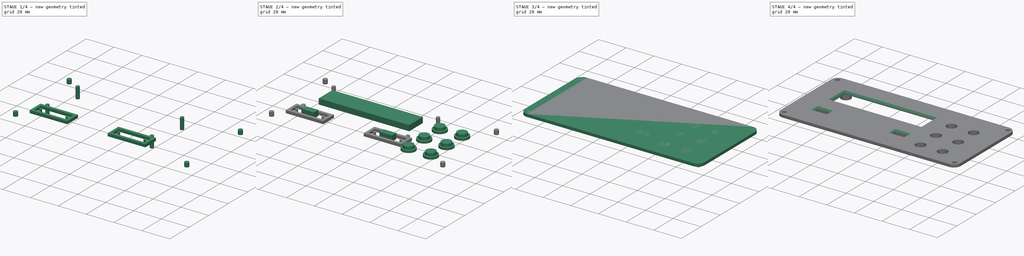
[diagram: build sequence overview — one tinted view per stage of 4, left to right]
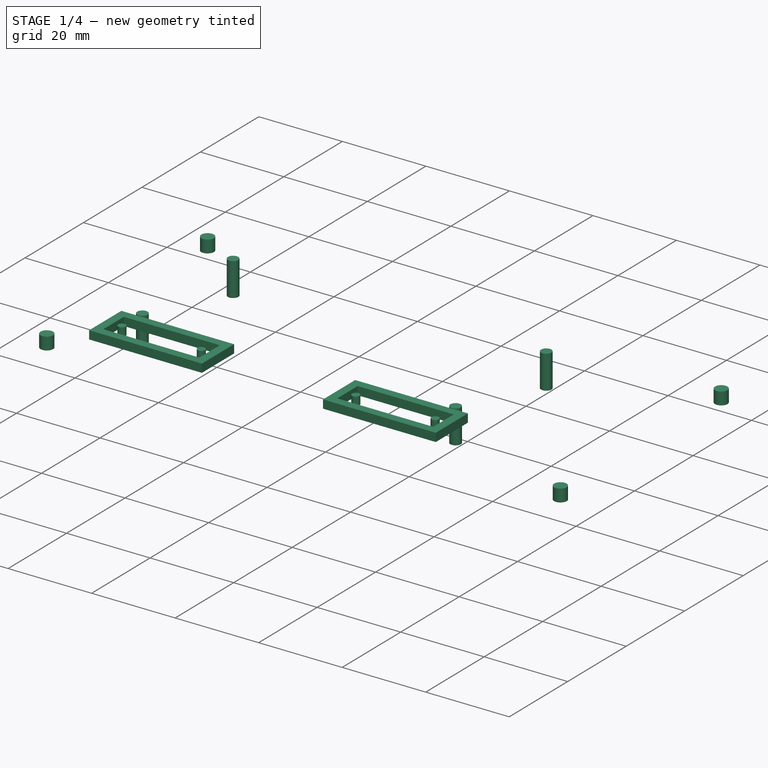
[diagram: stage 1 of 4 — iso view after this stage's code; geometry added in this stage tinted green]
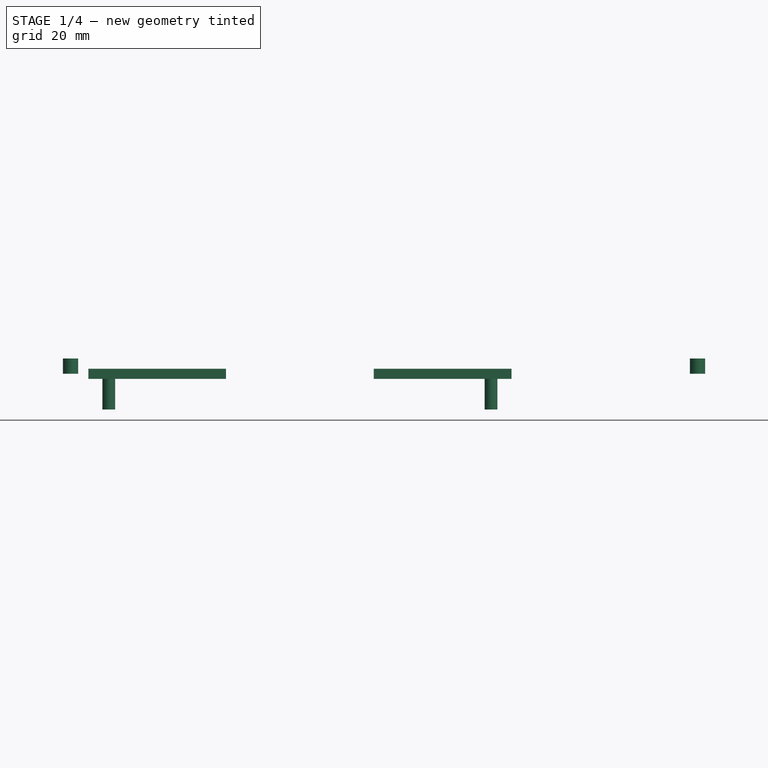
[diagram: stage 1 of 4 — front view after this stage's code; geometry added in this stage tinted green]
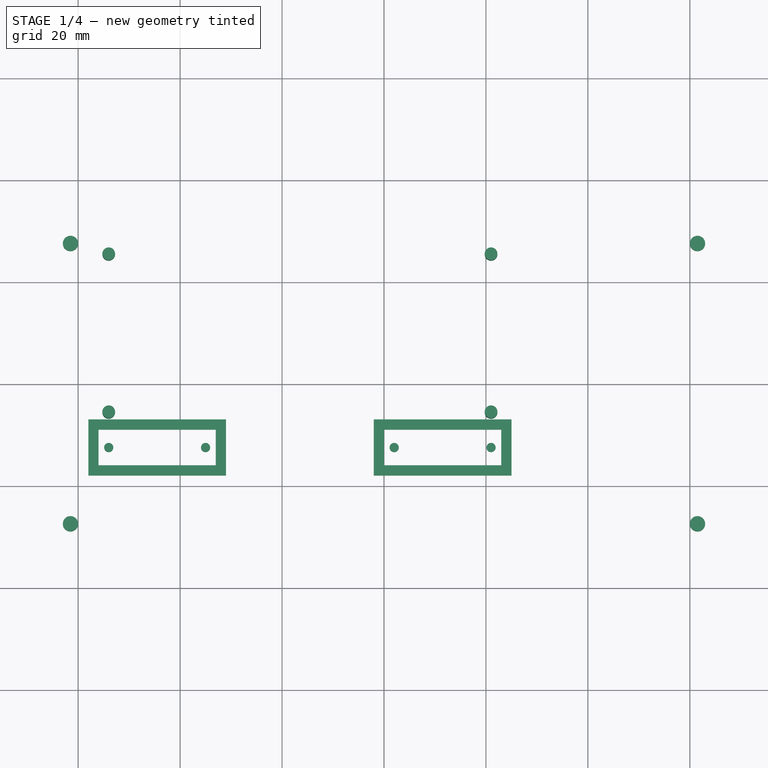
[diagram: stage 1 of 4 — top view after this stage's code; geometry added in this stage tinted green]
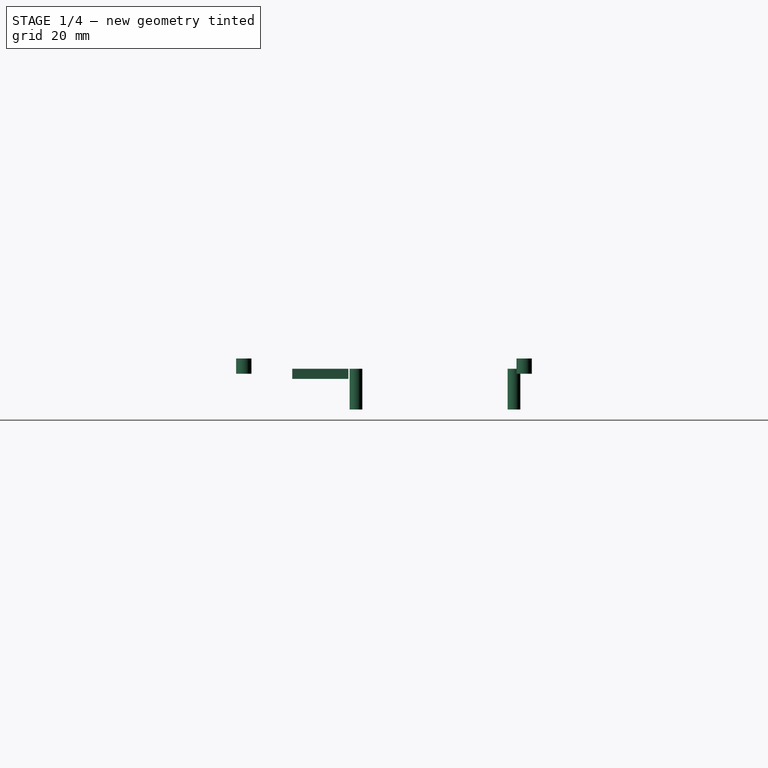
[diagram: stage 1 of 4 — right view after this stage's code; geometry added in this stage tinted green]
FCSTD DOCUMENT  (FreeCAD 0.20R29410 (Git))
Label: minidexed case panel
License: All rights reserved
LicenseURL: http://en.wikipedia.org/wiki/All_rights_reserved
objects: Sketcher::SketchObject×7, Part::Extrusion×7, Part::MultiFuse×2, PartDesign::Body×1, Part::Cut×1, Part::Chamfer×1
note: 19 computed .brp shape members not serialized (recipe doc carries the construction recipe); baked Part::Feature solids carry a one-line shape summary decoded from their .brp

FEATURE [Part::Extrusion] Extrude004
  Base = -> Sketch005
  Dir = (0,0,1)
  DirMode = 2
  FaceMakerClass = Part::FaceMakerBullseye
  LengthFwd = 0
  LengthRev = 8
  Solid = true
  Symmetric = false
FEATURE [Sketcher::SketchObject] Sketch006  label="Sketch Case Mounting Thru Holes"
  FullyConstrained = true
  MapMode = 5
  Support = -> [XY_Plane]
  sketch-geometry (12):
    g0: ArcOfCircle CenterX=-60 CenterY=26 CenterZ=0 NormalX=0 NormalY=0 NormalZ=1 AngleXU=0 Radius=5 StartAngle=1.5708 EndAngle=3.14159
    g1: LineSegment StartX=-60 StartY=31 StartZ=0 EndX=60 EndY=31 EndZ=0
    g2: ArcOfCircle CenterX=60 CenterY=26 CenterZ=0 NormalX=0 NormalY=0 NormalZ=1 AngleXU=0 Radius=5 StartAngle=2.775e-13 EndAngle=1.5708
    g3: LineSegment StartX=65 StartY=26 StartZ=0 EndX=65 EndY=-26 EndZ=0
    g4: ArcOfCircle CenterX=60 CenterY=-26 CenterZ=0 NormalX=0 NormalY=0 NormalZ=1 AngleXU=0 Radius=5 StartAngle=4.71239 EndAngle=6.28319
    g5: LineSegment StartX=60 StartY=-31 StartZ=0 EndX=-60 EndY=-31 EndZ=0
    g6: ArcOfCircle CenterX=-60 CenterY=-26 CenterZ=0 NormalX=0 NormalY=0 NormalZ=1 AngleXU=0 Radius=5 StartAngle=3.14159 EndAngle=4.71239
    g7: LineSegment StartX=-65 StartY=-26 StartZ=0 EndX=-65 EndY=26 EndZ=0
    g8: Circle CenterX=-61.5 CenterY=27.5 CenterZ=0 NormalX=0 NormalY=0 NormalZ=1 AngleXU=0 Radius=1.5
    g9: Circle CenterX=61.5 CenterY=27.5 CenterZ=0 NormalX=0 NormalY=0 NormalZ=1 AngleXU=0 Radius=1.5
    g10: Circle CenterX=-61.5 CenterY=-27.5 CenterZ=0 NormalX=0 NormalY=0 NormalZ=1 AngleXU=0 Radius=1.5
    g11: Circle CenterX=61.5 CenterY=-27.5 CenterZ=0 NormalX=0 NormalY=0 NormalZ=1 AngleXU=0 Radius=1.5
  constraints (30):
    c: Tangent(g0,g1) = 1.5708
    c: Tangent(g1,g2) = 1.5708
    c: Tangent(g2,g3) = 1.5708
    c: Tangent(g3,g4) = 1.5708
    c: Tangent(g4,g5) = 1.5708
    c: Tangent(g5,g6) = 1.5708
    c: Tangent(g6,g7) = 1.5708
    c: Tangent(g7,g0) = 1.5708
    c: Horizontal(g5)
    c: Vertical(g3)
    c: Equal(g0,g2)
    c: Equal(g2,g4)
    c: Equal(g4,g6)
    c: Symmetric(g0,g1,g-2)
    c: Symmetric(g0,g6,g-1)
    c: DistanceX(g0,g2) = 130
    c: DistanceY(g4,g1) = 62
    c: Radius(g6) = 5
    c: Diameter(g8) = 3
    c: Equal(g8,g9)
    c: Equal(g8,g10)
    c: Equal(g8,g11)
    c: Horizontal(g8,g9)
    c: Horizontal(g10,g11)
    c: Vertical(g8,g10)
    c: Vertical(g9,g11)
    c: DistanceY(g8,g0) = 3.5
    c: DistanceX(g0,g8) = 3.5
    c: DistanceX(g9,g2) = 3.5
    c: DistanceY(g5,g10) = 3.5
FEATURE [Part::Extrusion] Extrude005
  Base = -> Sketch006
  Dir = (0,0,1)
  DirMode = 2
  FaceMakerClass = Part::FaceMakerBullseye
  LengthFwd = 2
  LengthRev = 1
  Solid = true
  Symmetric = false
FEATURE [Sketcher::SketchObject] Sketch007  label="Sketch Switch Retainer"
  FullyConstrained = true
  MapMode = 5
  Support = -> [XY_Plane]
  sketch-geometry (32):
    g0: ArcOfCircle CenterX=-60 CenterY=26 CenterZ=0 NormalX=0 NormalY=0 NormalZ=1 AngleXU=0 Radius=5 StartAngle=1.5708 EndAngle=3.14159
    g1: LineSegment StartX=-60 StartY=31 StartZ=0 EndX=60 EndY=31 EndZ=0
    g2: ArcOfCircle CenterX=60 CenterY=26 CenterZ=0 NormalX=0 NormalY=0 NormalZ=1 AngleXU=0 Radius=5 StartAngle=0 EndAngle=1.5708
    g3: LineSegment StartX=65 StartY=26 StartZ=0 EndX=65 EndY=-26 EndZ=0
    g4: ArcOfCircle CenterX=60 CenterY=-26 CenterZ=0 NormalX=0 NormalY=0 NormalZ=1 AngleXU=0 Radius=5 StartAngle=4.71239 EndAngle=6.28319
    g5: LineSegment StartX=60 StartY=-31 StartZ=0 EndX=-60 EndY=-31 EndZ=0
    g6: ArcOfCircle CenterX=-60 CenterY=-26 CenterZ=0 NormalX=0 NormalY=0 NormalZ=1 AngleXU=0 Radius=5 StartAngle=3.14159 EndAngle=4.71239
    g7: LineSegment StartX=-65 StartY=-26 StartZ=0 EndX=-65 EndY=26 EndZ=0
    g8: LineSegment StartX=-49 StartY=17 StartZ=0 EndX=16 EndY=17 EndZ=0
    g9: LineSegment StartX=16 StartY=17 StartZ=0 EndX=16 EndY=3 EndZ=0
    g10: LineSegment StartX=16 StartY=3 StartZ=0 EndX=-49 EndY=3 EndZ=0
    g11: LineSegment StartX=-49 StartY=3 StartZ=0 EndX=-49 EndY=17 EndZ=0
    g12: LineSegment StartX=-56 StartY=-9 StartZ=0 EndX=-33 EndY=-9 EndZ=0
    g13: LineSegment StartX=-33 StartY=-9 StartZ=0 EndX=-33 EndY=-16 EndZ=0
    g14: LineSegment StartX=-33 StartY=-16 StartZ=0 EndX=-56 EndY=-16 EndZ=0
    g15: LineSegment StartX=-56 StartY=-16 StartZ=0 EndX=-56 EndY=-9 EndZ=0
    g16: LineSegment StartX=-58 StartY=-7 StartZ=0 EndX=-31 EndY=-7 EndZ=0
    g17: LineSegment StartX=-31 StartY=-7 StartZ=0 EndX=-31 EndY=-18 EndZ=0
    g18: LineSegment StartX=-31 StartY=-18 StartZ=0 EndX=-58 EndY=-18 EndZ=0
    g19: LineSegment StartX=-58 StartY=-18 StartZ=0 EndX=-58 EndY=-7 EndZ=0
    g20: LineSegment StartX=-2.13e-14 StartY=-9 StartZ=0 EndX=23 EndY=-9 EndZ=0
    g21: LineSegment StartX=23 StartY=-9 StartZ=0 EndX=23 EndY=-16 EndZ=0
    g22: LineSegment StartX=23 StartY=-16 StartZ=0 EndX=-2.13e-14 EndY=-16 EndZ=0
    g23: LineSegment StartX=-2.13e-14 StartY=-16 StartZ=0 EndX=-2.13e-14 EndY=-9 EndZ=0
    g24: LineSegment StartX=-2 StartY=-7 StartZ=0 EndX=25 EndY=-7 EndZ=0
    g25: LineSegment StartX=25 StartY=-7 StartZ=0 EndX=25 EndY=-18 EndZ=0
    g26: LineSegment StartX=25 StartY=-18 StartZ=0 EndX=-2 EndY=-18 EndZ=0
    g27: LineSegment StartX=-2 StartY=-18 StartZ=0 EndX=-2 EndY=-7 EndZ=0
    g28: Circle CenterX=-54 CenterY=-12.5 CenterZ=0 NormalX=0 NormalY=0 NormalZ=1 AngleXU=0 Radius=0.9
    g29: Circle CenterX=-35 CenterY=-12.5 CenterZ=0 NormalX=0 NormalY=0 NormalZ=1 AngleXU=0 Radius=0.9
    g30: Circle CenterX=2 CenterY=-12.5 CenterZ=0 NormalX=0 NormalY=0 NormalZ=1 AngleXU=0 Radius=0.9
    g31: Circle CenterX=21 CenterY=-12.5 CenterZ=0 NormalX=0 NormalY=0 NormalZ=1 AngleXU=0 Radius=0.9
  constraints (90):
    c: Tangent(g0,g1) = 1.5708
    c: Tangent(g1,g2) = 1.5708
    c: Tangent(g2,g3) = 1.5708
    c: Tangent(g3,g4) = 1.5708
    c: Tangent(g4,g5) = 1.5708
    c: Tangent(g5,g6) = 1.5708
    c: Tangent(g6,g7) = 1.5708
    c: Tangent(g7,g0) = 1.5708
    c: Horizontal(g5)
    c: Vertical(g3)
    c: Equal(g0,g2)
    c: Equal(g2,g4)
    c: Equal(g4,g6)
    c: Symmetric(g0,g1,g-2)
    c: Symmetric(g0,g6,g-1)
    c: DistanceX(g0,g2) = 130
    c: DistanceY(g4,g1) = 62
    c: Coincident(g8,g9)
    c: Coincident(g9,g10)
    c: Coincident(g10,g11)
    c: Coincident(g11,g8)
    c: Horizontal(g8)
    c: Horizontal(g10)
    c: Vertical(g9)
    c: Vertical(g11)
    c: DistanceX(g8,g8) = 65
    c: DistanceY(g9,g8) = 14
    c: DistanceX(g0,g8) = 16
    c: DistanceY(g8,g0) = 14
    c: Radius(g6) = 5
    c: Coincident(g12,g13)
    c: Coincident(g13,g14)
    c: Coincident(g14,g15)
    c: Coincident(g15,g12)
    c: Horizontal(g12)
    c: Horizontal(g14)
    c: Vertical(g13)
    c: Vertical(g15)
    c: Coincident(g16,g17)
    c: Coincident(g17,g18)
    c: Coincident(g18,g19)
    c: Coincident(g19,g16)
    c: Horizontal(g16)
    c: Horizontal(g18)
    c: Vertical(g17)
    c: Vertical(g19)
    c: DistanceX(g12,g12) = 23
    c: DistanceY(g14,g12) = 7
    c: DistanceX(g16,g16) = 27
    c: DistanceY(g18,g16) = 11
    c: DistanceX(g16,g12) = 2
    c: DistanceY(g12,g16) = 2
    c: DistanceY(g16,g10) = 10
    c: DistanceX(g12,g10) = 7
    c: Coincident(g20,g21)
    c: Coincident(g21,g22)
    c: Coincident(g22,g23)
    c: Coincident(g23,g20)
    c: Horizontal(g20)
    c: Horizontal(g22)
    c: Vertical(g21)
    c: Vertical(g23)
    c: Coincident(g24,g25)
    c: Coincident(g25,g26)
    c: Coincident(g26,g27)
    c: Coincident(g27,g24)
    c: Horizontal(g24)
    c: Horizontal(g26)
    c: Vertical(g25)
    c: Vertical(g27)
    c: DistanceX(g20,g20) = 23
    c: DistanceY(g22,g20) = 7
    c: DistanceX(g24,g24) = 27
    c: DistanceY(g26,g24) = 11
    c: DistanceX(g24,g20) = 2
    c: DistanceY(g20,g24) = 2
    c: DistanceY(g24,g9) = 10
    c: DistanceX(g9,g20) = 7
    c: Diameter(g28) = 1.8
    c: Equal(g28,g29)
    c: Equal(g28,g30)
    c: Equal(g28,g31)
    c: DistanceY(g28,g12) = 3.5
    c: Horizontal(g28,g29)
    c: Horizontal(g28,g30)
    c: Horizontal(g28,g31)
    c: DistanceX(g12,g28) = 2
    c: DistanceX(g29,g12) = 2
    c: DistanceX(g20,g30) = 2
    c: DistanceX(g31,g20) = 2
FEATURE [Part::Extrusion] Extrude006
  Base = -> Sketch007
  Dir = (0,0,1)
  DirMode = 2
  FaceMakerClass = Part::FaceMakerBullseye
  LengthFwd = 0
  LengthRev = 2
  Solid = true
  Symmetric = false
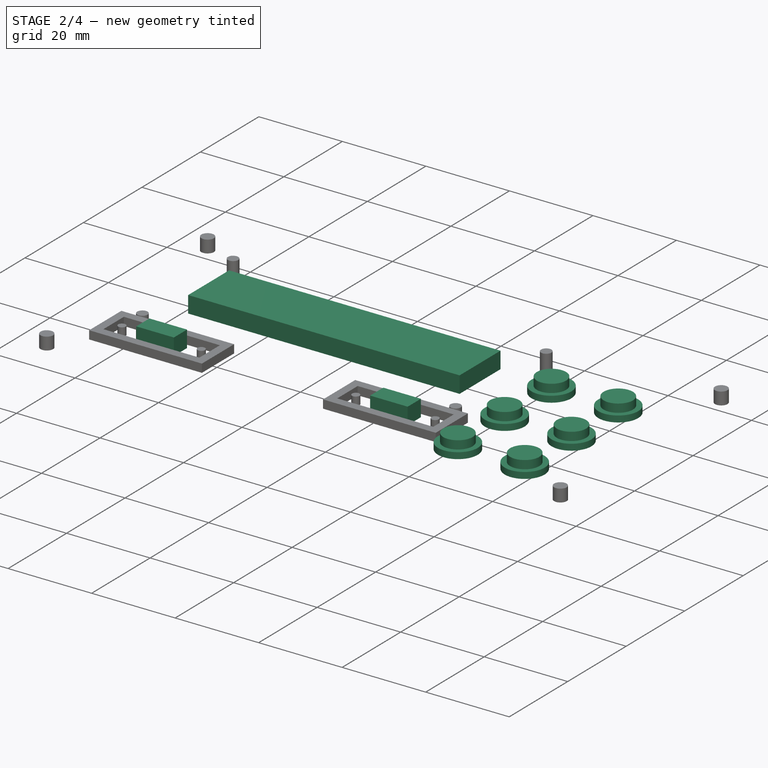
[diagram: stage 2 of 4 — iso view after this stage's code; geometry added in this stage tinted green]
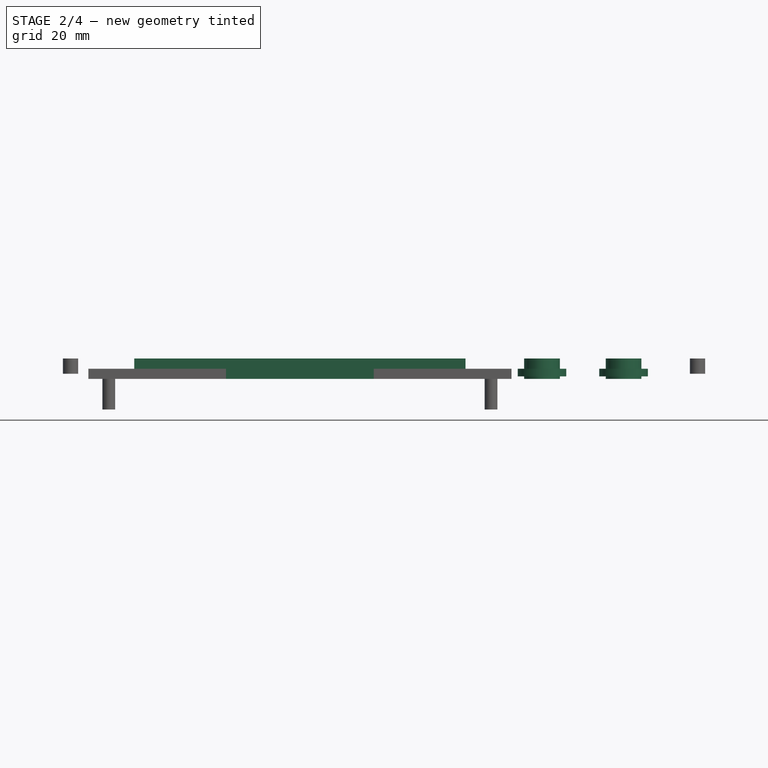
[diagram: stage 2 of 4 — front view after this stage's code; geometry added in this stage tinted green]
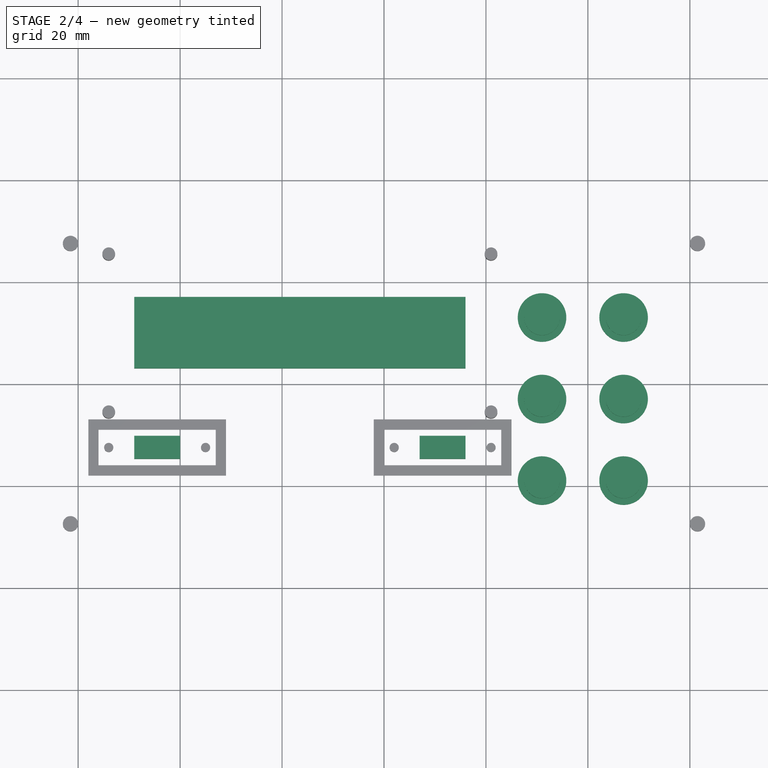
[diagram: stage 2 of 4 — top view after this stage's code; geometry added in this stage tinted green]
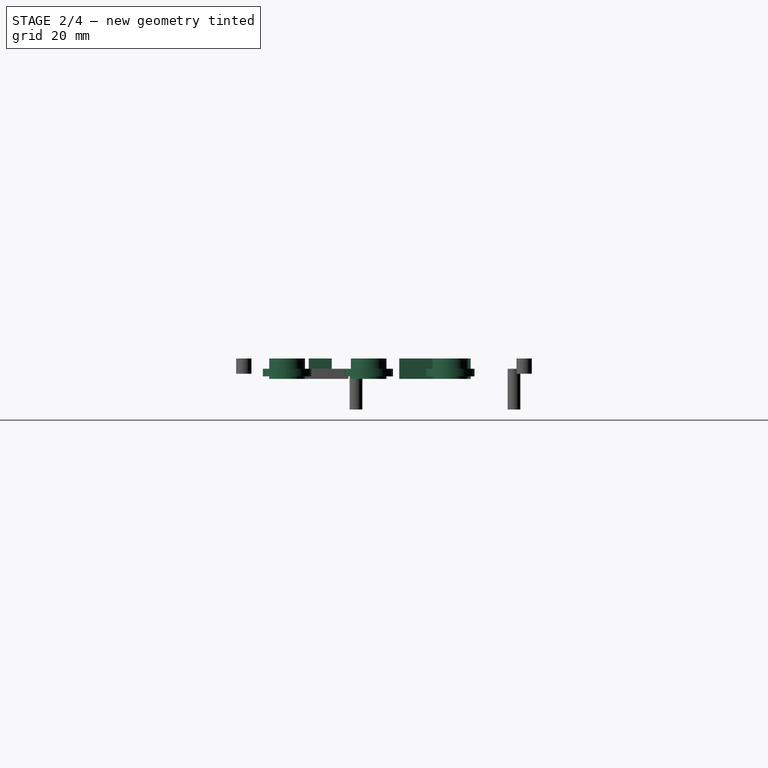
[diagram: stage 2 of 4 — right view after this stage's code; geometry added in this stage tinted green]
FEATURE [Part::Extrusion] Extrude002
  Base = -> Sketch004
  Dir = (0,0,1)
  DirMode = 2
  FaceMakerClass = Part::FaceMakerBullseye
  LengthFwd = 0
  LengthRev = 1.5
  Solid = true
  Symmetric = false
FEATURE [Part::Extrusion] Extrude003
  Base = -> Sketch001
  Dir = (0,0,1)
  DirMode = 2
  FaceMakerClass = Part::FaceMakerBullseye
  LengthFwd = 2
  LengthRev = 2
  Solid = true
  Symmetric = false
FEATURE [Part::MultiFuse] Fusion001
  Shapes = -> [Extrude003,Extrude004,Extrude005]
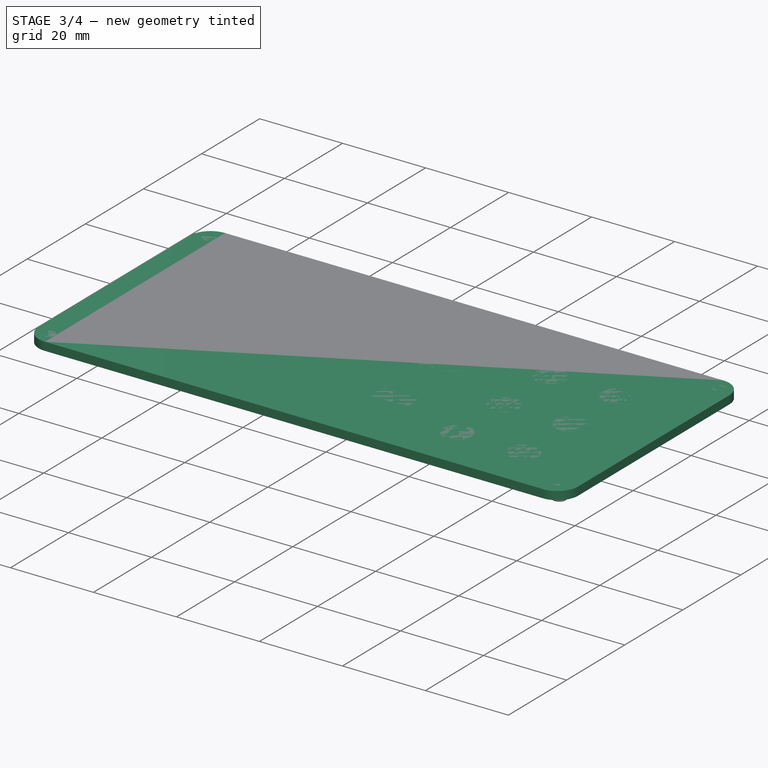
[diagram: stage 3 of 4 — iso view after this stage's code; geometry added in this stage tinted green]
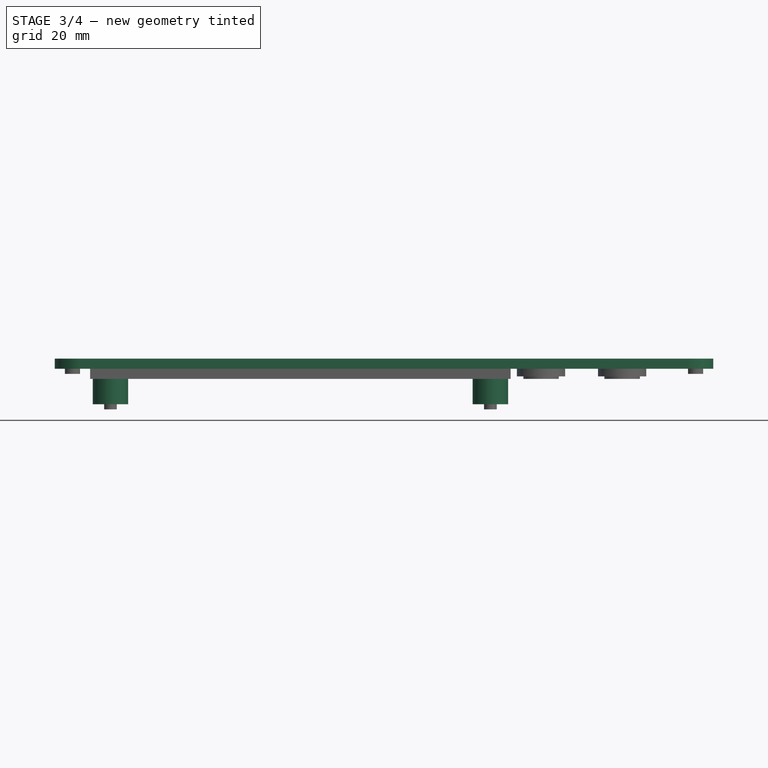
[diagram: stage 3 of 4 — front view after this stage's code; geometry added in this stage tinted green]
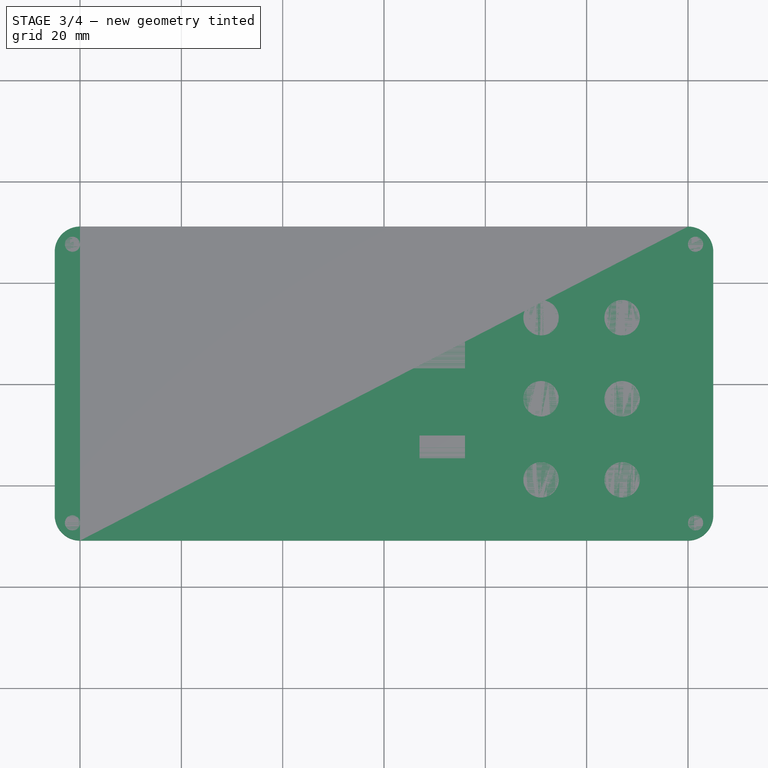
[diagram: stage 3 of 4 — top view after this stage's code; geometry added in this stage tinted green]
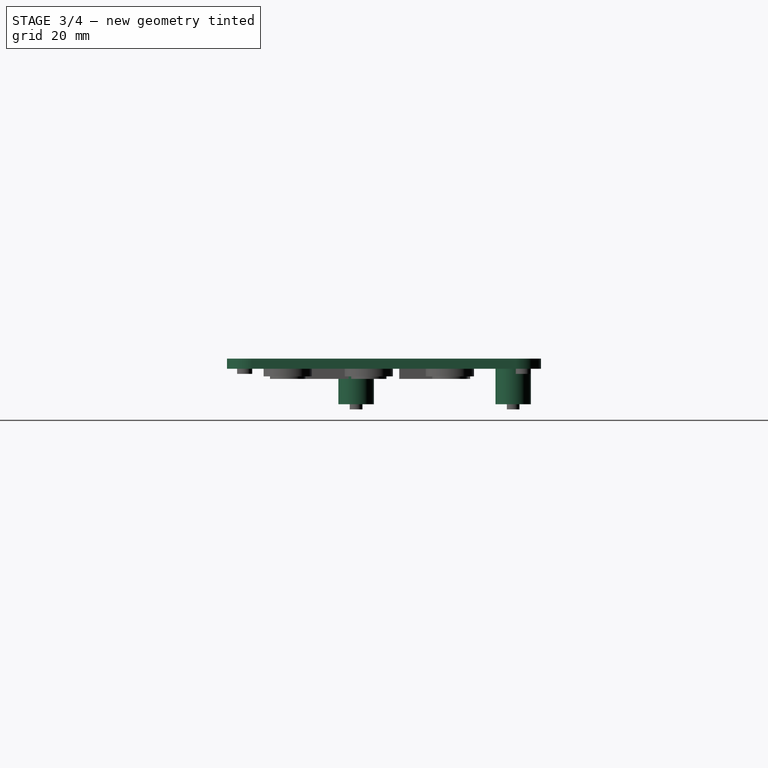
[diagram: stage 3 of 4 — right view after this stage's code; geometry added in this stage tinted green]
FEATURE [PartDesign::Body] Body
  Origin = -> Origin
FEATURE [Sketcher::SketchObject] Sketch  label="Sketch Outer"
  FullyConstrained = true
  MapMode = 5
  Support = -> [XY_Plane]
  sketch-geometry (8):
    g0: ArcOfCircle CenterX=-60 CenterY=26 CenterZ=0 NormalX=0 NormalY=0 NormalZ=1 AngleXU=0 Radius=5 StartAngle=1.5708 EndAngle=3.14159
    g1: LineSegment StartX=-60 StartY=31 StartZ=0 EndX=60 EndY=31 EndZ=0
    g2: ArcOfCircle CenterX=60 CenterY=26 CenterZ=0 NormalX=0 NormalY=0 NormalZ=1 AngleXU=0 Radius=5 StartAngle=2e-16 EndAngle=1.5708
    g3: LineSegment StartX=65 StartY=26 StartZ=0 EndX=65 EndY=-26 EndZ=0
    g4: ArcOfCircle CenterX=60 CenterY=-26 CenterZ=0 NormalX=0 NormalY=0 NormalZ=1 AngleXU=0 Radius=5 StartAngle=4.71239 EndAngle=6.28319
    g5: LineSegment StartX=60 StartY=-31 StartZ=0 EndX=-60 EndY=-31 EndZ=0
    g6: ArcOfCircle CenterX=-60 CenterY=-26 CenterZ=0 NormalX=0 NormalY=0 NormalZ=1 AngleXU=0 Radius=5 StartAngle=3.14159 EndAngle=4.71239
    g7: LineSegment StartX=-65 StartY=-26 StartZ=0 EndX=-65 EndY=26 EndZ=0
  constraints (18):
    c: Tangent(g0,g1) = 1.5708
    c: Tangent(g1,g2) = 1.5708
    c: Tangent(g2,g3) = 1.5708
    c: Tangent(g3,g4) = 1.5708
    c: Tangent(g4,g5) = 1.5708
    c: Tangent(g5,g6) = 1.5708
    c: Tangent(g6,g7) = 1.5708
    c: Tangent(g7,g0) = 1.5708
    c: Horizontal(g5)
    c: Vertical(g3)
    c: Equal(g0,g2)
    c: Equal(g2,g4)
    c: Equal(g4,g6)
    c: Symmetric(g0,g1,g-2)
    c: Symmetric(g0,g6,g-1)
    c: DistanceX(g0,g2) = 130
    c: DistanceY(g4,g1) = 62
    c: Radius(g6) = 5
FEATURE [Sketcher::SketchObject] Sketch001  label="Sketch Thru Holes"
  FullyConstrained = true
  MapMode = 5
  Support = -> [XY_Plane]
  sketch-geometry (26):
    g0: ArcOfCircle CenterX=-60 CenterY=26 CenterZ=0 NormalX=0 NormalY=0 NormalZ=1 AngleXU=0 Radius=5 StartAngle=1.5708 EndAngle=3.14159
    g1: LineSegment StartX=-60 StartY=31 StartZ=0 EndX=60 EndY=31 EndZ=0
    g2: ArcOfCircle CenterX=60 CenterY=26 CenterZ=0 NormalX=0 NormalY=0 NormalZ=1 AngleXU=0 Radius=5 StartAngle=1.0828e-12 EndAngle=1.5708
    g3: LineSegment StartX=65 StartY=26 StartZ=0 EndX=65 EndY=-26 EndZ=0
    g4: ArcOfCircle CenterX=60 CenterY=-26 CenterZ=0 NormalX=0 NormalY=0 NormalZ=1 AngleXU=0 Radius=5 StartAngle=4.71239 EndAngle=6.28319
    g5: LineSegment StartX=60 StartY=-31 StartZ=0 EndX=-60 EndY=-31 EndZ=0
    g6: ArcOfCircle CenterX=-60 CenterY=-26 CenterZ=0 NormalX=0 NormalY=0 NormalZ=1 AngleXU=0 Radius=5 StartAngle=3.14159 EndAngle=4.71239
    g7: LineSegment StartX=-65 StartY=-26 StartZ=0 EndX=-65 EndY=26 EndZ=0
    g8: LineSegment StartX=-49 StartY=17 StartZ=0 EndX=16 EndY=17 EndZ=0
    g9: LineSegment StartX=16 StartY=17 StartZ=0 EndX=16 EndY=3 EndZ=0
    g10: LineSegment StartX=16 StartY=3 StartZ=0 EndX=-49 EndY=3 EndZ=0
    g11: LineSegment StartX=-49 StartY=3 StartZ=0 EndX=-49 EndY=17 EndZ=0
    g12: Circle CenterX=31 CenterY=13 CenterZ=0 NormalX=0 NormalY=0 NormalZ=1 AngleXU=0 Radius=3.5
    g13: Circle CenterX=47 CenterY=13 CenterZ=0 NormalX=0 NormalY=0 NormalZ=1 AngleXU=0 Radius=3.5
    g14: Circle CenterX=31 CenterY=-3 CenterZ=0 NormalX=0 NormalY=0 NormalZ=1 AngleXU=0 Radius=3.5
    g15: Circle CenterX=47 CenterY=-3 CenterZ=0 NormalX=0 NormalY=0 NormalZ=1 AngleXU=0 Radius=3.5
    g16: Circle CenterX=31 CenterY=-19 CenterZ=0 NormalX=0 NormalY=0 NormalZ=1 AngleXU=0 Radius=3.5
    g17: Circle CenterX=47 CenterY=-19 CenterZ=0 NormalX=0 NormalY=0 NormalZ=1 AngleXU=0 Radius=3.5
    g18: LineSegment StartX=-49 StartY=-10.25 StartZ=0 EndX=-40 EndY=-10.25 EndZ=0
    g19: LineSegment StartX=-40 StartY=-10.25 StartZ=0 EndX=-40 EndY=-14.75 EndZ=0
    g20: LineSegment StartX=-40 StartY=-14.75 StartZ=0 EndX=-49 EndY=-14.75 EndZ=0
    g21: LineSegment StartX=-49 StartY=-14.75 StartZ=0 EndX=-49 EndY=-10.25 EndZ=0
    g22: LineSegment StartX=7 StartY=-10.25 StartZ=0 EndX=16 EndY=-10.25 EndZ=0
    g23: LineSegment StartX=16 StartY=-10.25 StartZ=0 EndX=16 EndY=-14.75 EndZ=0
    g24: LineSegment StartX=16 StartY=-14.75 StartZ=0 EndX=7 EndY=-14.75 EndZ=0
    g25: LineSegment StartX=7 StartY=-14.75 StartZ=0 EndX=7 EndY=-10.25 EndZ=0
  constraints (68):
    c: Tangent(g0,g1) = 1.5708
    c: Tangent(g1,g2) = 1.5708
    c: Tangent(g2,g3) = 1.5708
    c: Tangent(g3,g4) = 1.5708
    c: Tangent(g4,g5) = 1.5708
    c: Tangent(g5,g6) = 1.5708
    c: Tangent(g6,g7) = 1.5708
    c: Tangent(g7,g0) = 1.5708
    c: Horizontal(g5)
    c: Vertical(g3)
    c: Equal(g0,g2)
    c: Equal(g2,g4)
    c: Equal(g4,g6)
    c: Symmetric(g0,g1,g-2)
    c: Symmetric(g0,g6,g-1)
    c: DistanceX(g0,g2) = 130
    c: DistanceY(g4,g1) = 62
    c: Coincident(g8,g9)
    c: Coincident(g9,g10)
    c: Coincident(g10,g11)
    c: Coincident(g11,g8)
    c: Horizontal(g8)
    c: Horizontal(g10)
    c: Vertical(g9)
    c: Vertical(g11)
    c: DistanceX(g8,g8) = 65
    c: DistanceY(g9,g8) = 14
    c: DistanceX(g0,g8) = 16
    c: DistanceY(g8,g0) = 14
    c: Radius(g6) = 5
    c: Diameter(g12) = 7
    c: Equal(g12, g13-g17) x5
    c: DistanceX(g13,g2) = 18
    c: DistanceX(g12,g13) = 16
    c: Horizontal(g12,g13)
    c: Horizontal(g14,g15)
    c: Horizontal(g16,g17)
    c: Vertical(g12,g14)
    c: Vertical(g14,g16)
    c: Vertical(g13,g15)
    c: Vertical(g15,g17)
    c: DistanceY(g14,g12) = 16
    c: DistanceY(g16,g14) = 16
    c: DistanceY(g4,g16) = 12
    c: Coincident(g18,g19)
    c: Coincident(g19,g20)
    c: Coincident(g20,g21)
    c: Coincident(g21,g18)
    c: Horizontal(g18)
    c: Horizontal(g20)
    c: Vertical(g19)
    c: Vertical(g21)
    c: DistanceX(g18,g18) = 9
    c: DistanceY(g20,g18) = 4.5
    c: DistanceY(g18,g10) = 13.25
    c: Vertical(g10,g18)
    c: Coincident(g22,g23)
    c: Coincident(g23,g24)
    c: Coincident(g24,g25)
    c: Coincident(g25,g22)
    c: Horizontal(g22)
    c: Horizontal(g24)
    c: Vertical(g23)
    c: Vertical(g25)
    c: DistanceX(g22,g22) = 9
    c: DistanceY(g24,g22) = 4.5
    c: DistanceY(g22,g9) = 13.25
    c: Vertical(g9,g22)
FEATURE [Sketcher::SketchObject] Sketch003  label="Sketch Display Spacers"
  FullyConstrained = true
  MapMode = 5
  Support = -> [XY_Plane]
  sketch-geometry (16):
    g0: ArcOfCircle CenterX=-60 CenterY=26 CenterZ=0 NormalX=0 NormalY=0 NormalZ=1 AngleXU=0 Radius=5 StartAngle=1.5708 EndAngle=3.14159
    g1: LineSegment StartX=-60 StartY=31 StartZ=0 EndX=60 EndY=31 EndZ=0
    g2: ArcOfCircle CenterX=60 CenterY=26 CenterZ=0 NormalX=0 NormalY=0 NormalZ=1 AngleXU=0 Radius=5 StartAngle=6.1037e-12 EndAngle=1.5708
    g3: LineSegment StartX=65 StartY=26 StartZ=0 EndX=65 EndY=-26 EndZ=0
    g4: ArcOfCircle CenterX=60 CenterY=-26 CenterZ=0 NormalX=0 NormalY=0 NormalZ=1 AngleXU=0 Radius=5 StartAngle=4.71239 EndAngle=6.28319
    g5: LineSegment StartX=60 StartY=-31 StartZ=0 EndX=-60 EndY=-31 EndZ=0
    g6: ArcOfCircle CenterX=-60 CenterY=-26 CenterZ=0 NormalX=0 NormalY=0 NormalZ=1 AngleXU=0 Radius=5 StartAngle=3.14159 EndAngle=4.71239
    g7: LineSegment StartX=-65 StartY=-26 StartZ=0 EndX=-65 EndY=26 EndZ=0
    g8: LineSegment StartX=-49 StartY=17 StartZ=0 EndX=16 EndY=17 EndZ=0
    g9: LineSegment StartX=16 StartY=17 StartZ=0 EndX=16 EndY=3 EndZ=0
    g10: LineSegment StartX=16 StartY=3 StartZ=0 EndX=-49 EndY=3 EndZ=0
    g11: LineSegment StartX=-49 StartY=3 StartZ=0 EndX=-49 EndY=17 EndZ=0
    g12: Circle CenterX=-54 CenterY=25.5 CenterZ=0 NormalX=0 NormalY=0 NormalZ=1 AngleXU=0 Radius=3.5
    g13: Circle CenterX=21 CenterY=25.5 CenterZ=0 NormalX=0 NormalY=0 NormalZ=1 AngleXU=0 Radius=3.5
    g14: Circle CenterX=-54 CenterY=-5.5 CenterZ=0 NormalX=0 NormalY=0 NormalZ=1 AngleXU=0 Radius=3.5
    g15: Circle CenterX=21 CenterY=-5.5 CenterZ=0 NormalX=0 NormalY=0 NormalZ=1 AngleXU=0 Radius=3.5
  constraints (42):
    c: Tangent(g0,g1) = 1.5708
    c: Tangent(g1,g2) = 1.5708
    c: Tangent(g2,g3) = 1.5708
    c: Tangent(g3,g4) = 1.5708
    c: Tangent(g4,g5) = 1.5708
    c: Tangent(g5,g6) = 1.5708
    c: Tangent(g6,g7) = 1.5708
    c: Tangent(g7,g0) = 1.5708
    c: Horizontal(g5)
    c: Vertical(g3)
    c: Equal(g0,g2)
    c: Equal(g2,g4)
    c: Equal(g4,g6)
    c: Symmetric(g0,g1,g-2)
    c: Symmetric(g0,g6,g-1)
    c: DistanceX(g0,g2) = 130
    c: DistanceY(g4,g1) = 62
    c: Coincident(g8,g9)
    c: Coincident(g9,g10)
    c: Coincident(g10,g11)
    c: Coincident(g11,g8)
    c: Horizontal(g8)
    c: Horizontal(g10)
    c: Vertical(g9)
    c: Vertical(g11)
    c: DistanceX(g8,g8) = 65
    c: DistanceY(g9,g8) = 14
    c: DistanceX(g0,g8) = 16
    c: DistanceY(g8,g0) = 14
    c: Radius(g6) = 5
    c: Diameter(g12) = 7
    c: Equal(g12,g13)
    c: Equal(g12,g14)
    c: Equal(g12,g15)
    c: Horizontal(g12,g13)
    c: Horizontal(g14,g15)
    c: Vertical(g12,g14)
    c: Vertical(g13,g15)
    c: DistanceX(g14,g10) = 5
    c: DistanceX(g9,g15) = 5
    c: DistanceY(g8,g12) = 8.5
    c: DistanceY(g14,g10) = 8.5
FEATURE [Sketcher::SketchObject] Sketch004  label="Sketch Button Spacers"
  FullyConstrained = true
  MapMode = 5
  Support = -> [XY_Plane]
  sketch-geometry (14):
    g0: ArcOfCircle CenterX=-60 CenterY=26 CenterZ=0 NormalX=0 NormalY=0 NormalZ=1 AngleXU=0 Radius=5 StartAngle=1.5708 EndAngle=3.14159
    g1: LineSegment StartX=-60 StartY=31 StartZ=0 EndX=60 EndY=31 EndZ=0
    g2: ArcOfCircle CenterX=60 CenterY=26 CenterZ=0 NormalX=0 NormalY=0 NormalZ=1 AngleXU=0 Radius=5 StartAngle=3.033e-13 EndAngle=1.5708
    g3: LineSegment StartX=65 StartY=26 StartZ=0 EndX=65 EndY=-26 EndZ=0
    g4: ArcOfCircle CenterX=60 CenterY=-26 CenterZ=0 NormalX=0 NormalY=0 NormalZ=1 AngleXU=0 Radius=5 StartAngle=4.71239 EndAngle=6.28319
    g5: LineSegment StartX=60 StartY=-31 StartZ=0 EndX=-60 EndY=-31 EndZ=0
    g6: ArcOfCircle CenterX=-60 CenterY=-26 CenterZ=0 NormalX=0 NormalY=0 NormalZ=1 AngleXU=0 Radius=5 StartAngle=3.14159 EndAngle=4.71239
    g7: LineSegment StartX=-65 StartY=-26 StartZ=0 EndX=-65 EndY=26 EndZ=0
    g8: Circle CenterX=31 CenterY=13 CenterZ=0 NormalX=0 NormalY=0 NormalZ=1 AngleXU=0 Radius=4.7625
    g9: Circle CenterX=47 CenterY=13 CenterZ=0 NormalX=0 NormalY=0 NormalZ=1 AngleXU=0 Radius=4.7625
    g10: Circle CenterX=31 CenterY=-3 CenterZ=0 NormalX=0 NormalY=0 NormalZ=1 AngleXU=0 Radius=4.7625
    g11: Circle CenterX=47 CenterY=-3 CenterZ=0 NormalX=0 NormalY=0 NormalZ=1 AngleXU=0 Radius=4.7625
    g12: Circle CenterX=31 CenterY=-19 CenterZ=0 NormalX=0 NormalY=0 NormalZ=1 AngleXU=0 Radius=4.7625
    g13: Circle CenterX=47 CenterY=-19 CenterZ=0 NormalX=0 NormalY=0 NormalZ=1 AngleXU=0 Radius=4.7625
  constraints (32):
    c: Tangent(g0,g1) = 1.5708
    c: Tangent(g1,g2) = 1.5708
    c: Tangent(g2,g3) = 1.5708
    c: Tangent(g3,g4) = 1.5708
    c: Tangent(g4,g5) = 1.5708
    c: Tangent(g5,g6) = 1.5708
    c: Tangent(g6,g7) = 1.5708
    c: Tangent(g7,g0) = 1.5708
    c: Horizontal(g5)
    c: Vertical(g3)
    c: Equal(g0,g2)
    c: Equal(g2,g4)
    c: Equal(g4,g6)
    c: Symmetric(g0,g1,g-2)
    c: Symmetric(g0,g6,g-1)
    c: DistanceX(g0,g2) = 130
    c: DistanceY(g4,g1) = 62
    c: Radius(g6) = 5
    c: Diameter(g8) = 9.525
    c: Equal(g8, g9-g13) x5
    c: DistanceX(g9,g2) = 18
    c: DistanceX(g8,g9) = 16
    c: Horizontal(g8,g9)
    c: Horizontal(g10,g11)
    c: Horizontal(g12,g13)
    c: Vertical(g8,g10)
    c: Vertical(g10,g12)
    c: Vertical(g9,g11)
    c: Vertical(g11,g13)
    c: DistanceY(g10,g8) = 16
    c: DistanceY(g12,g10) = 16
    c: DistanceY(g4,g12) = 12
FEATURE [Sketcher::SketchObject] Sketch005  label="Sketch Blind Holes"
  FullyConstrained = true
  MapMode = 5
  Support = -> [XY_Plane]
  sketch-geometry (16):
    g0: ArcOfCircle CenterX=-60 CenterY=26 CenterZ=0 NormalX=0 NormalY=0 NormalZ=1 AngleXU=0 Radius=5 StartAngle=1.5708 EndAngle=3.14159
    g1: LineSegment StartX=-60 StartY=31 StartZ=0 EndX=60 EndY=31 EndZ=0
    g2: ArcOfCircle CenterX=60 CenterY=26 CenterZ=0 NormalX=0 NormalY=0 NormalZ=1 AngleXU=0 Radius=5 StartAngle=6.1039e-12 EndAngle=1.5708
    g3: LineSegment StartX=65 StartY=26 StartZ=0 EndX=65 EndY=-26 EndZ=0
    g4: ArcOfCircle CenterX=60 CenterY=-26 CenterZ=0 NormalX=0 NormalY=0 NormalZ=1 AngleXU=0 Radius=5 StartAngle=4.71239 EndAngle=6.28319
    g5: LineSegment StartX=60 StartY=-31 StartZ=0 EndX=-60 EndY=-31 EndZ=0
    g6: ArcOfCircle CenterX=-60 CenterY=-26 CenterZ=0 NormalX=0 NormalY=0 NormalZ=1 AngleXU=0 Radius=5 StartAngle=3.14159 EndAngle=4.71239
    g7: LineSegment StartX=-65 StartY=-26 StartZ=0 EndX=-65 EndY=26 EndZ=0
    g8: LineSegment StartX=-49 StartY=17 StartZ=0 EndX=16 EndY=17 EndZ=0
    g9: LineSegment StartX=16 StartY=17 StartZ=0 EndX=16 EndY=3 EndZ=0
    g10: LineSegment StartX=16 StartY=3 StartZ=0 EndX=-49 EndY=3 EndZ=0
    g11: LineSegment StartX=-49 StartY=3 StartZ=0 EndX=-49 EndY=17 EndZ=0
    g12: Circle CenterX=-54 CenterY=25.5 CenterZ=0 NormalX=0 NormalY=0 NormalZ=1 AngleXU=0 Radius=1.25
    g13: Circle CenterX=21 CenterY=25.5 CenterZ=0 NormalX=0 NormalY=0 NormalZ=1 AngleXU=0 Radius=1.25
    g14: Circle CenterX=-54 CenterY=-5.5 CenterZ=0 NormalX=0 NormalY=0 NormalZ=1 AngleXU=0 Radius=1.25
    g15: Circle CenterX=21 CenterY=-5.5 CenterZ=0 NormalX=0 NormalY=0 NormalZ=1 AngleXU=0 Radius=1.25
  constraints (42):
    c: Tangent(g0,g1) = 1.5708
    c: Tangent(g1,g2) = 1.5708
    c: Tangent(g2,g3) = 1.5708
    c: Tangent(g3,g4) = 1.5708
    c: Tangent(g4,g5) = 1.5708
    c: Tangent(g5,g6) = 1.5708
    c: Tangent(g6,g7) = 1.5708
    c: Tangent(g7,g0) = 1.5708
    c: Horizontal(g5)
    c: Vertical(g3)
    c: Equal(g0,g2)
    c: Equal(g2,g4)
    c: Equal(g4,g6)
    c: Symmetric(g0,g1,g-2)
    c: Symmetric(g0,g6,g-1)
    c: DistanceX(g0,g2) = 130
    c: DistanceY(g4,g1) = 62
    c: Coincident(g8,g9)
    c: Coincident(g9,g10)
    c: Coincident(g10,g11)
    c: Coincident(g11,g8)
    c: Horizontal(g8)
    c: Horizontal(g10)
    c: Vertical(g9)
    c: Vertical(g11)
    c: DistanceX(g8,g8) = 65
    c: DistanceY(g9,g8) = 14
    c: DistanceX(g0,g8) = 16
    c: DistanceY(g8,g0) = 14
    c: Radius(g6) = 5
    c: Diameter(g12) = 2.5
    c: Equal(g12,g13)
    c: Equal(g12,g14)
    c: Equal(g12,g15)
    c: Horizontal(g12,g13)
    c: Horizontal(g14,g15)
    c: Vertical(g12,g14)
    c: Vertical(g13,g15)
    c: DistanceX(g14,g10) = 5
    c: DistanceX(g9,g15) = 5
    c: DistanceY(g8,g12) = 8.5
    c: DistanceY(g14,g10) = 8.5
FEATURE [Part::Extrusion] Extrude
  Base = -> Sketch
  Dir = (0,0,1)
  DirMode = 2
  FaceMakerClass = Part::FaceMakerBullseye
  LengthFwd = 2
  LengthRev = 0
  Solid = true
  Symmetric = false
FEATURE [Part::Extrusion] Extrude001
  Base = -> Sketch003
  Dir = (0,0,1)
  DirMode = 2
  FaceMakerClass = Part::FaceMakerBullseye
  LengthFwd = 0
  LengthRev = 7
  Solid = true
  Symmetric = false
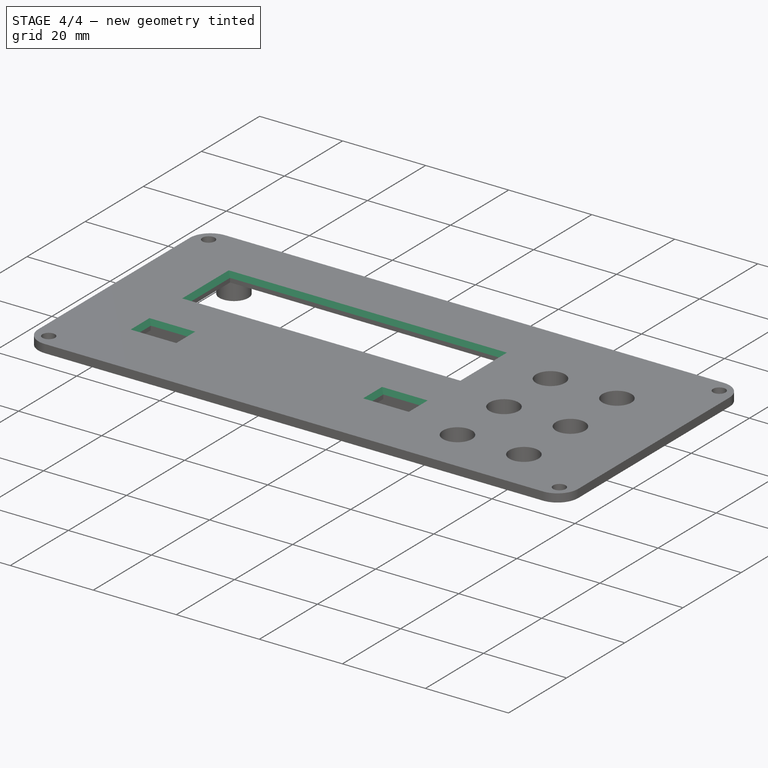
[diagram: stage 4 of 4 — iso view after this stage's code; geometry added in this stage tinted green]
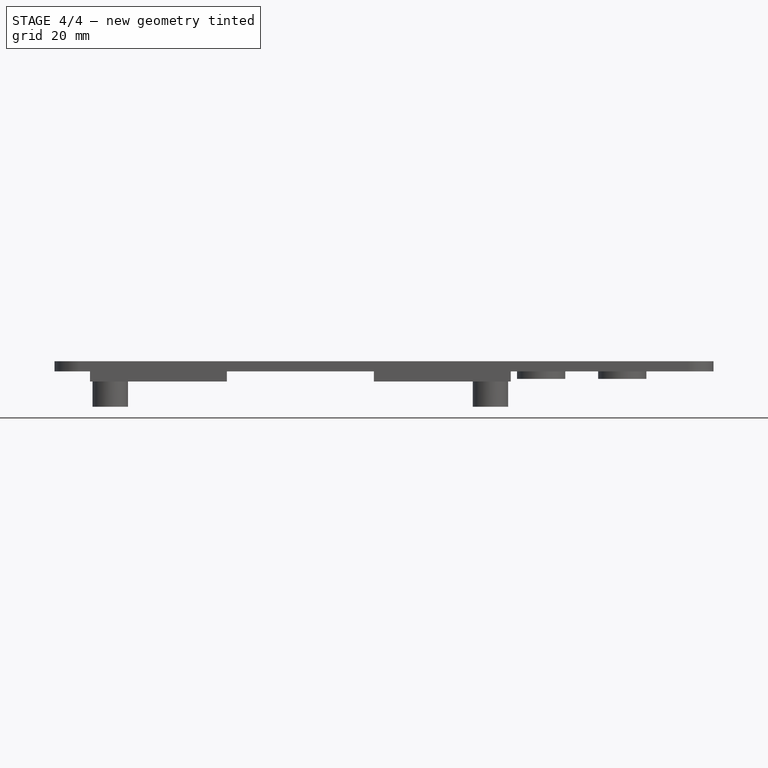
[diagram: stage 4 of 4 — front view after this stage's code; geometry added in this stage tinted green]
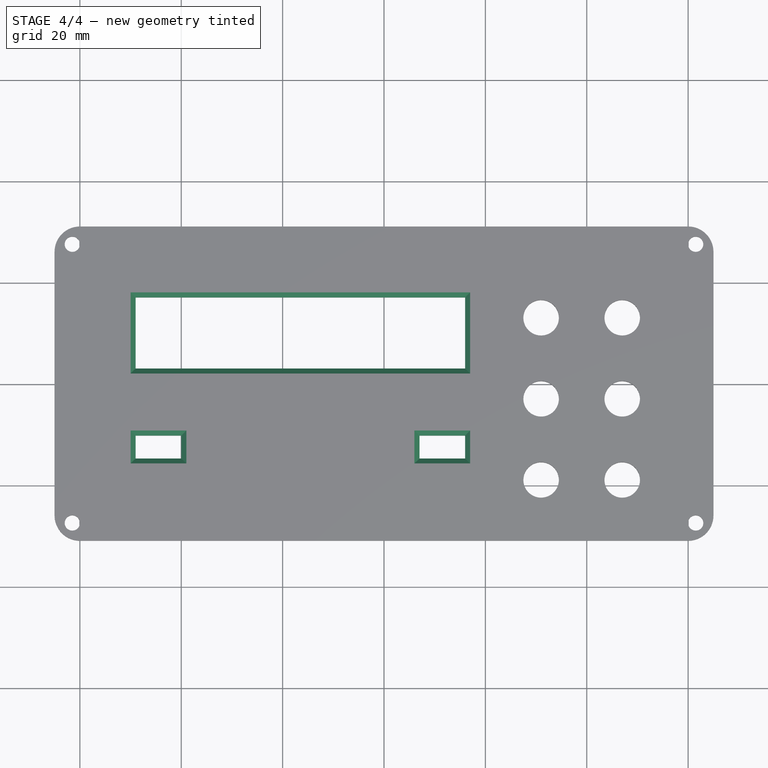
[diagram: stage 4 of 4 — top view after this stage's code; geometry added in this stage tinted green]
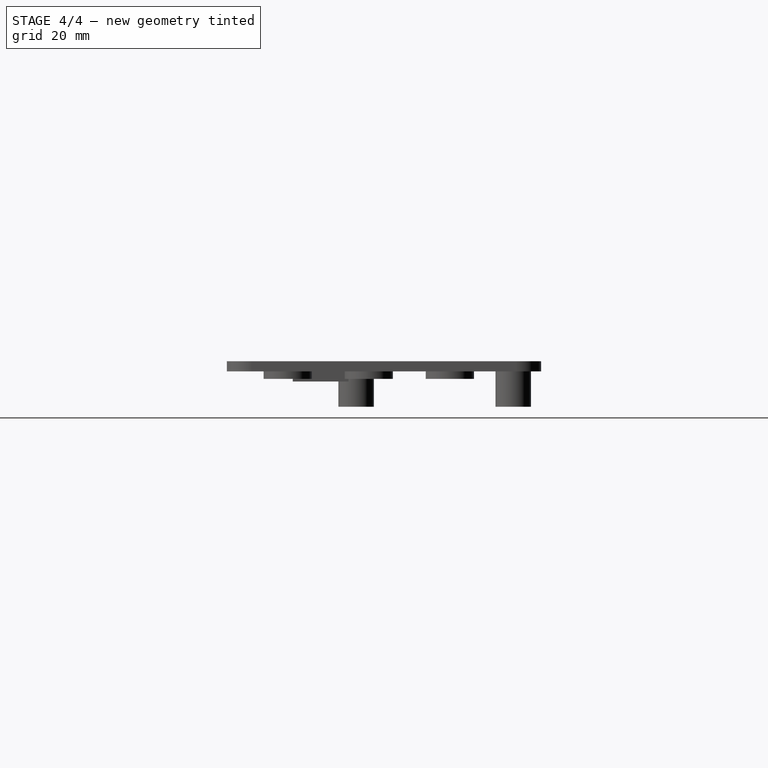
[diagram: stage 4 of 4 — right view after this stage's code; geometry added in this stage tinted green]
FEATURE [Part::MultiFuse] Fusion
  Shapes = -> [Extrude,Extrude001,Extrude002,Extrude006]
FEATURE [Part::Cut] Cut
  Base = -> Fusion
  Tool = -> Fusion001
FEATURE [Part::Chamfer] Chamfer
  Base = -> Cut
  Edges = 12 edges r=1: [Edge52,Edge53,Edge54,Edge55,Edge59,Edge60,Edge61,Edge62,Edge65,Edge66,Edge67,Edge68]
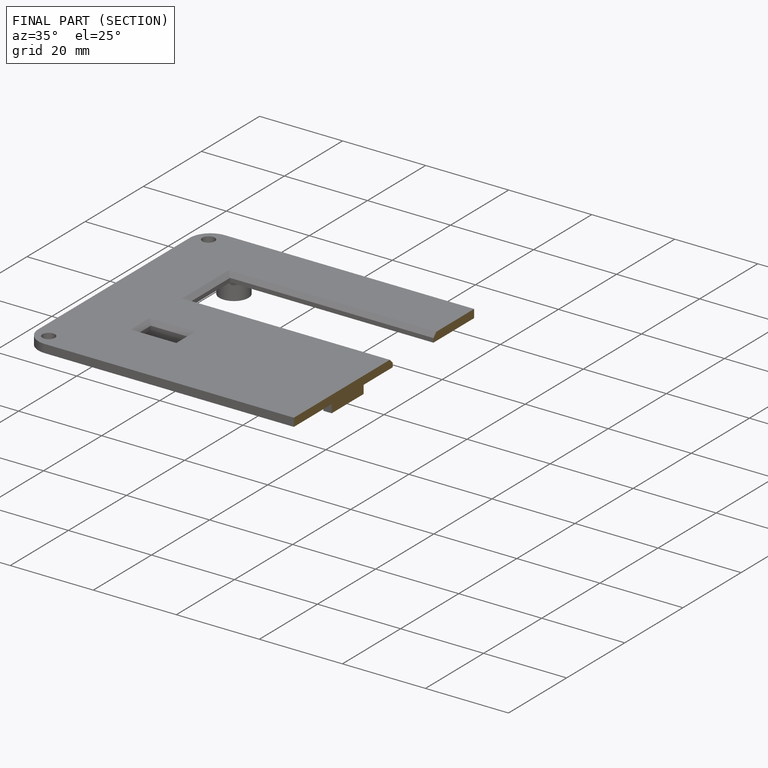
[diagram: finished part — half-section view (interior)]
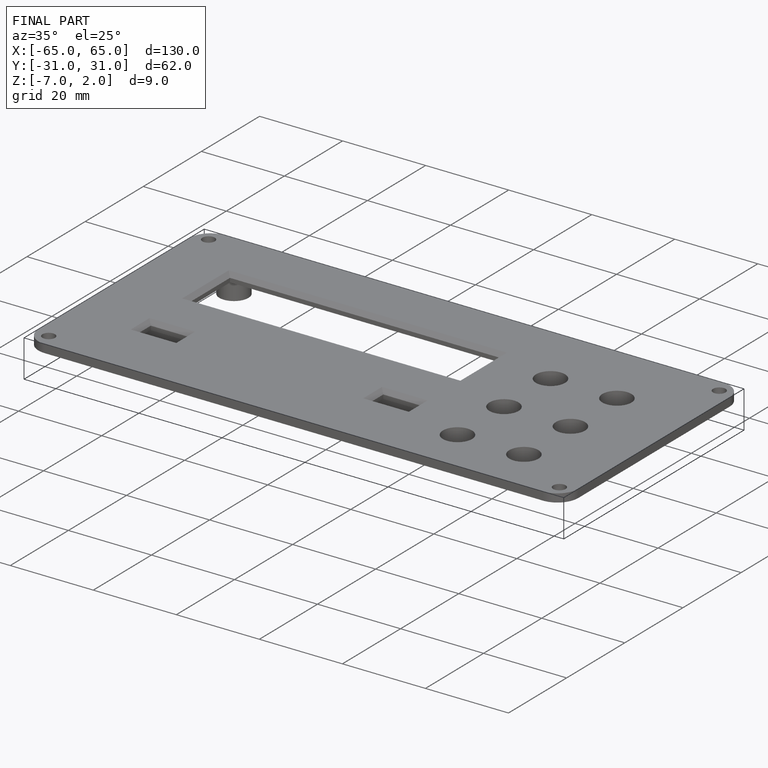
[diagram: finished part — iso view with bounding-box wireframe]
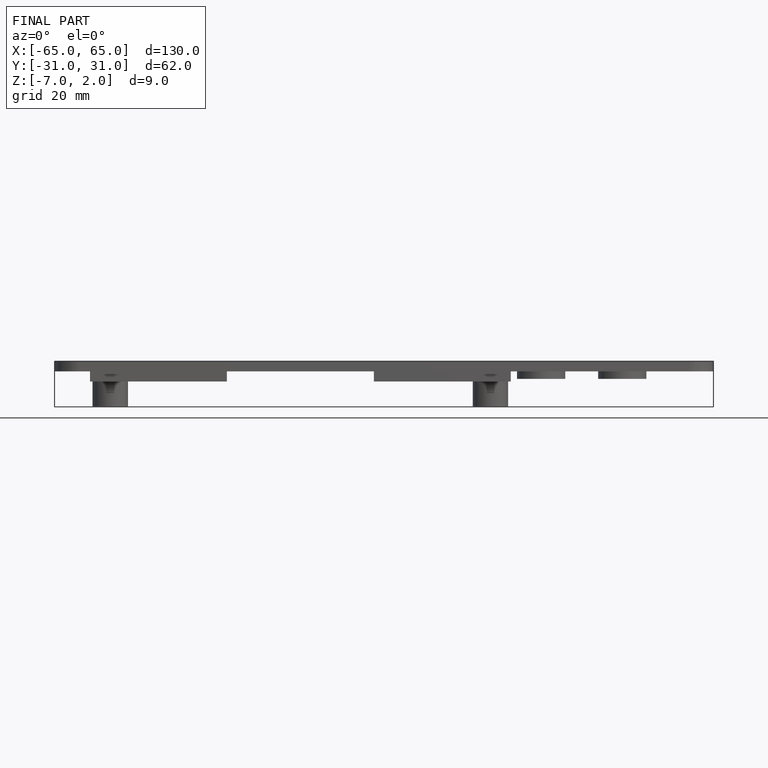
[diagram: finished part — front view with bounding-box wireframe]
